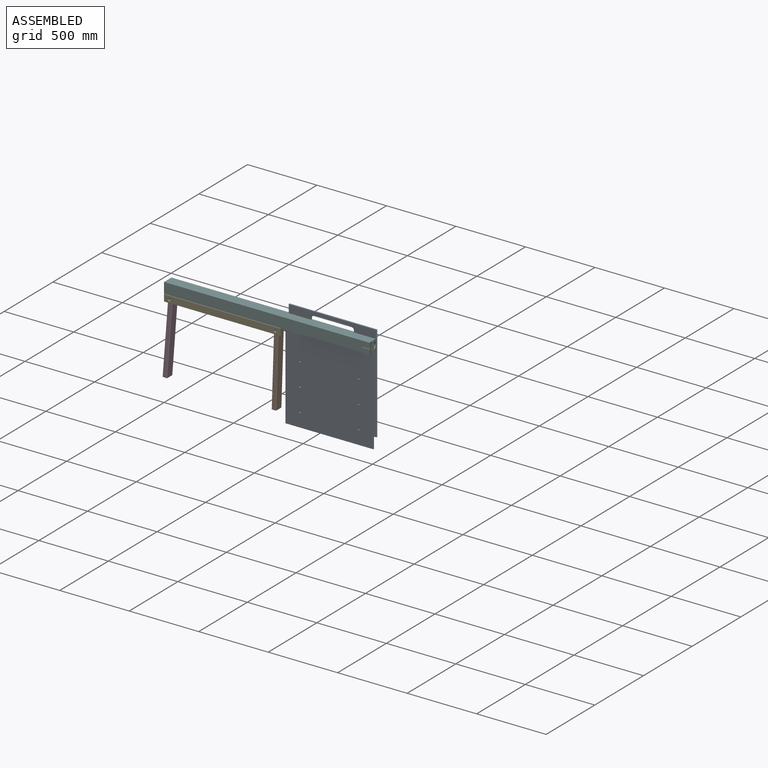
[diagram: assembled view]
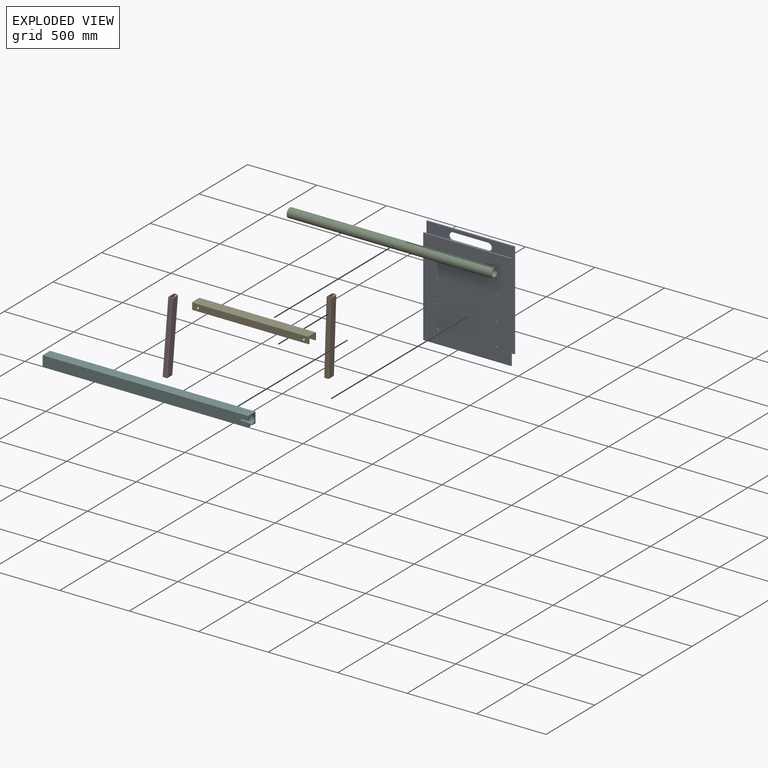
[diagram: exploded view]
GUIDED TOUR — MATED ASSEMBLY WITH SUBASSEMBLIES (Onshape document 70557b2124c0daec0d32242d, AutoMate assembly 70557b2124c0daec0d32242d_989a107bf7c6edacbf782923_fd09c190e4a29a3487687479_default)

This assembly has 13 component occurrences arranged in 6 top-level units: 5 individual components plus 1 subassembly (S0). The tour has two levels: first the top level, where each subassembly is treated as one rigid unit; then each subassembly is toured internally in its own section (nesting deeper than one subassembly level is flattened into its subassembly's section).

Components are labeled P0..P12 across the whole record; subassembly units are labeled S0..S0. A mate is a constraint between two units; its type names the relative motion it leaves free:
  CYLINDRICAL — leaves both rotation about and translation along the listed axis free,
  FASTENED — locks the two components together rigidly (no relative motion),
  REVOLUTE — leaves rotation about the listed axis free (a hinge).
Axis/direction vectors are unit vectors and 'through' points are millimeter coordinates, both in the assembly's world frame.

TOP-LEVEL MATES (between units; each subassembly's internal mates are listed in its own section)
  1. CYLINDRICAL "Cylindrical 1": P6 <-> P12, axis (1.000, 0.000, 0.000) through (1411.62, 133.45, 10.81) mm
  2. REVOLUTE "Revolute 2": P8 <-> P9, axis (0.000, -1.000, 0.000) through (-28.56, 104.24, -57.14) mm
  3. REVOLUTE "Revolute 1": P3 <-> P9, axis (0.000, -1.000, 0.000) through (733.44, 104.24, -57.14) mm
  4. FASTENED "Fastened 1": P12 <-> P9, direction (0.000, 0.000, -1.000) through (-66.66, 133.45, -27.29) mm
  5. FASTENED "Fastened 2": P6 <-> S0, direction (0.000, -1.000, 0.000) through (1411.62, 138.53, 43.43) mm

TOP-LEVEL ASSEMBLY ORDER
  1. P8 — the base component [order verified]
  2. P9 [order verified]
  3. P6 [order verified]
  4. P3 [order verified]
  5. P12 [order verified]
  6. S0 [order verified]
Order-tag legend:
  [order verified] — this step's position reverses a verified removal order: the component was checked to insert without passing through the ones already placed.

Of the 13 component occurrences, 6 carry the full construction recipe — the FeatureScript program that regenerates the part's solid from scratch; the rest are supplied as boundary geometry only. Each toured unit is shown spotlighted twice — assembled, then exploded with a leader line back to its socket (green = recipe-attached component, orange = geometry-only, blue = subassembly unit; the rest desaturated gray).
NOTE — this tour is split across 2 documents so each fits a 32k-token context. This is document 1: the component sections continue in the remaining 1 document, each repeating the header above.
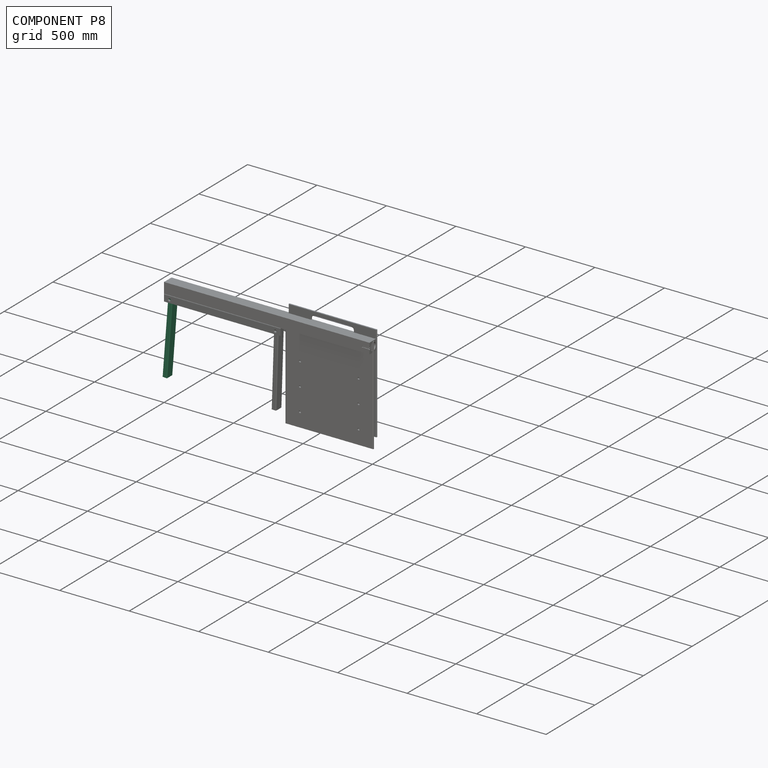
[diagram: component P8 — assembled]
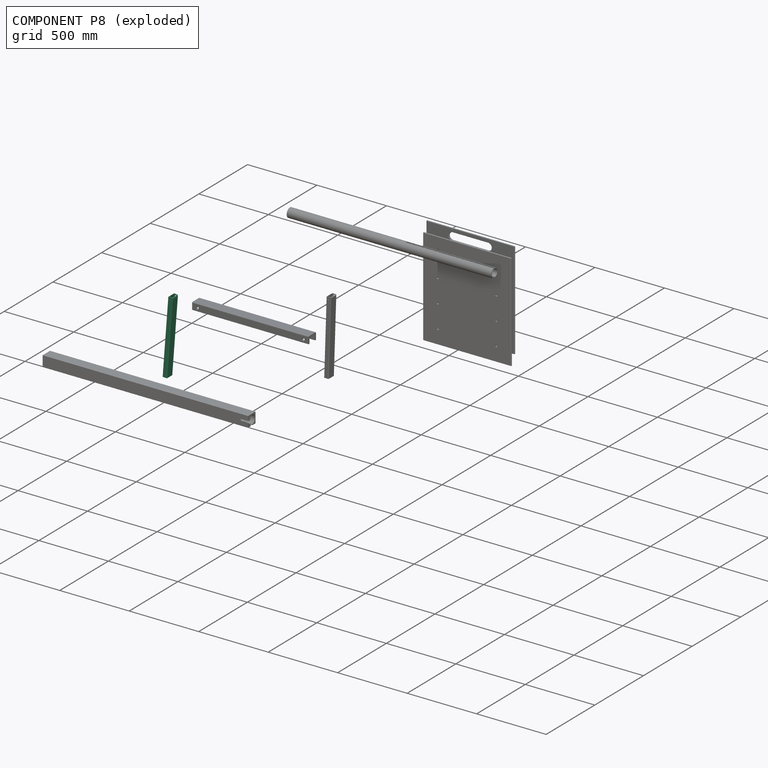
[diagram: component P8 — exploded]
COMPONENT P8 — same part as P3 (CADFS 00144173); its construction recipe is shown at P3.
Held by: REVOLUTE mate "Revolute 2" to P9.
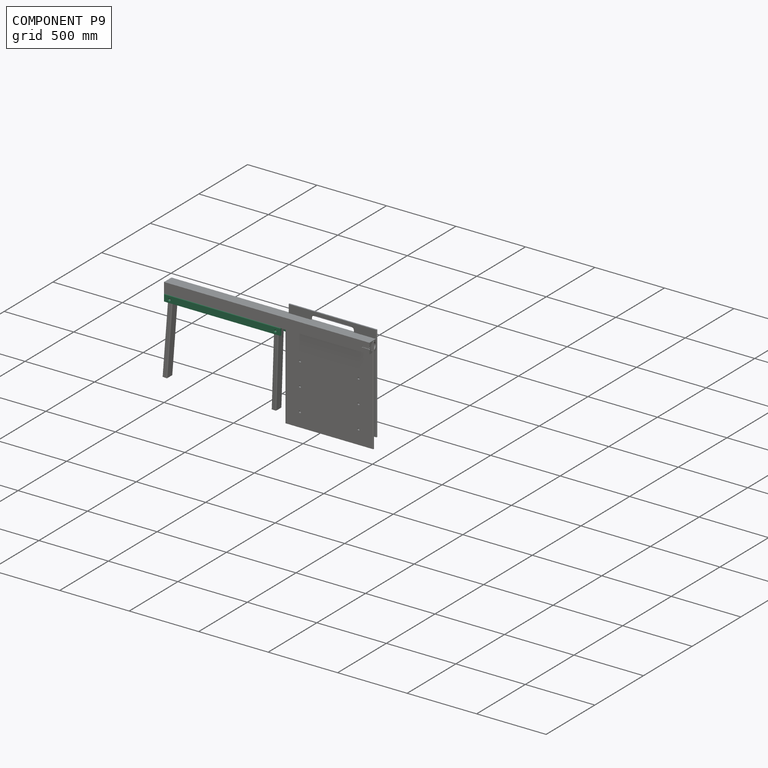
[diagram: component P9 — assembled]
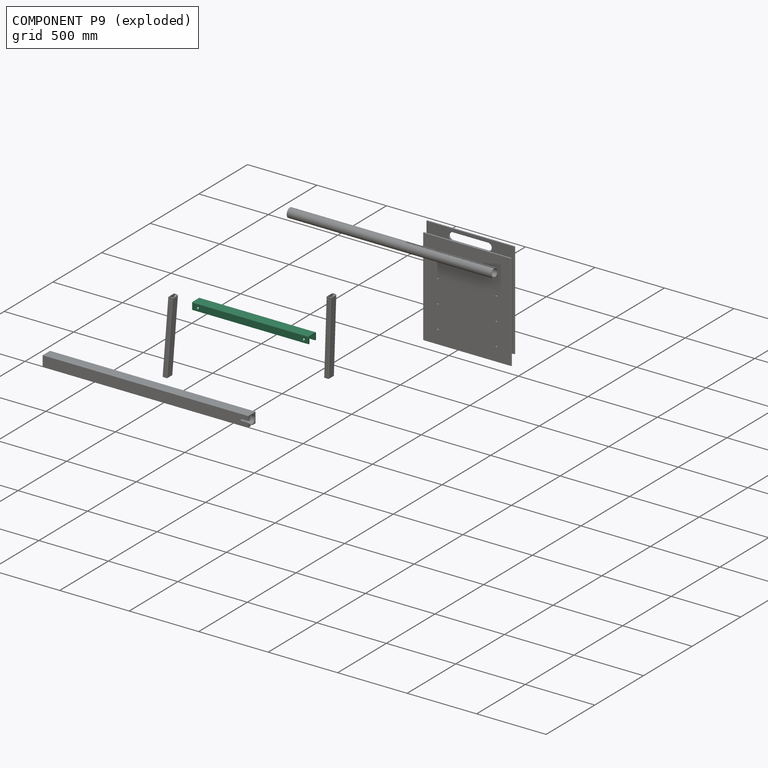
[diagram: component P9 — exploded]
COMPONENT P9 — recipe-attached (CADFS 00144172, mesh-verified: the recipe's output STEP matches this component's geometry to below the mesh-comparison resolution (tessellation chordal tolerance ~1.26 mm)).
Held by: REVOLUTE mate "Revolute 2" to P8; REVOLUTE mate "Revolute 1" to P3; FASTENED mate "Fastened 1" to P12.
Construction recipe (FeatureScript — the CAD program that rebuilds this solid; sketch coordinates are in the units given by the * unit suffixes, e.g. mm):

FeatureScript 1511;
import(path : "onshape/std/geometry.fs", version : "1511.0");
import(path : "onshape/std/common.fs", version : "1511.0");
const mm = millimeter;
const VERTEX = EntityType.VERTEX;
const EDGE = EntityType.EDGE;
const FACE = EntityType.FACE;
const BODY = EntityType.BODY;
function v(x, y){return vector(x, y);}
function OD(order){return orderDisambiguation(order);}
function OSD(set){return originalSetDisambiguation(set);}
function TD(topology){return topologyDisambiguation(topology);}
function TDD(query){return trueDependencyDisambiguation(query);}
function sQuery(a, b, c) {return sketchEntityQuery(a, b, c);}

annotation { "Feature Type Name" : "Feature", "Feature Type Description" : "" }
export const myFeature = defineFeature(function(context is Context, id is Id, definition is map)
    precondition{}
    {
        {
            var Q0;
            Q0=qCreatedBy(makeId("Front.planeOp"),FACE);
            var sketch = newSketch(context, id + "F0", { "sketchPlane" : qUnion([Q0])});
            skLineSegment(sketch, "E0", {"start": v(0, 0) * mm, "end": v(838.2, 0) * mm});
            skLineSegment(sketch, "E1", {"start": v(838.2, 0) * mm, "end": v(838.2, -50.8) * mm});
            skLineSegment(sketch, "E2", {"start": v(0, 0) * mm, "end": v(0, -50.8) * mm});
            skLineSegment(sketch, "E3", {"start": v(0, -50.8) * mm, "end": v(838.2, -50.8) * mm});
            skSolve(sketch);
        }
        {
            var Q0;
            Q0=makeQuery(id+"F0.imprint","IMPRINT",FACE,{"disambiguationData":[TD([[makeQuery(id+"F0.imprint","IMPRINT",EDGE,{"derivedFrom":sQuery(id+"F0.wireOp",EDGE,"E0")}),-1.0]])]});
            extrude(context, id + "F1", {"entities" : qUnion([Q0]), "depth" : 76.2 * mm});
        }
        {
            var Q0;
            Q0=makeQuery(id+"F1.opExtrude","CAP_FACE",FACE,{"disambiguationData":[OSD([sQuery(id+"F0.wireOp",EDGE,"E0"),sQuery(id+"F0.wireOp",EDGE,"E1"),sQuery(id+"F0.wireOp",EDGE,"E2"),sQuery(id+"F0.wireOp",EDGE,"E3")])],"isStart":false});
            var sketch = newSketch(context, id + "F2", { "sketchPlane" : qUnion([Q0])});
            skPoint(sketch, "E4", {"position": v(38.1, -29.85) * mm});
            skPoint(sketch, "E5", {"position": v(800.1, -29.84) * mm});
            skSolve(sketch);
        }
        {
            var Q0;
            Q0=makeQuery(id+"F1.opExtrude","SWEPT_FACE",FACE,{"disambiguationData":[OSD([sQuery(id+"F0.wireOp",EDGE,"E1")])]});
            var Q1;
            Q1=makeQuery(id+"F1.opExtrude","SWEPT_FACE",FACE,{"disambiguationData":[OSD([sQuery(id+"F0.wireOp",EDGE,"E3")])]});
            var Q2;
            Q2=makeQuery(id+"F1.opExtrude","SWEPT_FACE",FACE,{"disambiguationData":[OSD([sQuery(id+"F0.wireOp",EDGE,"E2")])]});
            shell(context, id + "F3", {"entities" : qUnion([Q0, Q1, Q2]), "thickness" : 8.9 * mm});
        }
        {
            var Q0;
            Q0=sQuery(id+"F2.wireOp",VERTEX,"E4");
            var Q1;
            Q1=sQuery(id+"F2.wireOp",VERTEX,"E5");
            var Q2;
            Q2=makeQuery(id+"F1.opExtrude","SWEPT_BODY",BODY,{"disambiguationData":[OSD([sQuery(id+"F0.wireOp",EDGE,"E0"),sQuery(id+"F0.wireOp",EDGE,"E1"),sQuery(id+"F0.wireOp",EDGE,"E2"),sQuery(id+"F0.wireOp",EDGE,"E3")])]});
            hole(context, id + "F4", {"style" : HoleStyle.C_SINK, "endStyle" : HoleEndStyle.THROUGH, "holeDiameter" : 12.7 * mm, "cSinkDiameter" : 20.32 * mm, "cSinkAngle" : 90 * degree, "locations" : qUnion([Q0, Q1]), "scope" : qUnion([Q2]), "isTappedThrough" : true});
        }
        {
            var Q0;
            Q0=makeQuery(id+"F1.opExtrude","CAP_EDGE",EDGE,{"disambiguationData":[OSD([sQuery(id+"F0.wireOp",EDGE,"E0")])],"isStart":false});
            var Q1;
            Q1=makeQuery(id+"F1.opExtrude","CAP_EDGE",EDGE,{"disambiguationData":[OSD([sQuery(id+"F0.wireOp",EDGE,"E0")])],"isStart":true});
            fillet(context, id + "F5", {"entities" : qUnion([Q0, Q1]), "radius" : 5.08 * mm, "tangentPropagation" : true, "allowEdgeOverflow" : false});
        }
    });
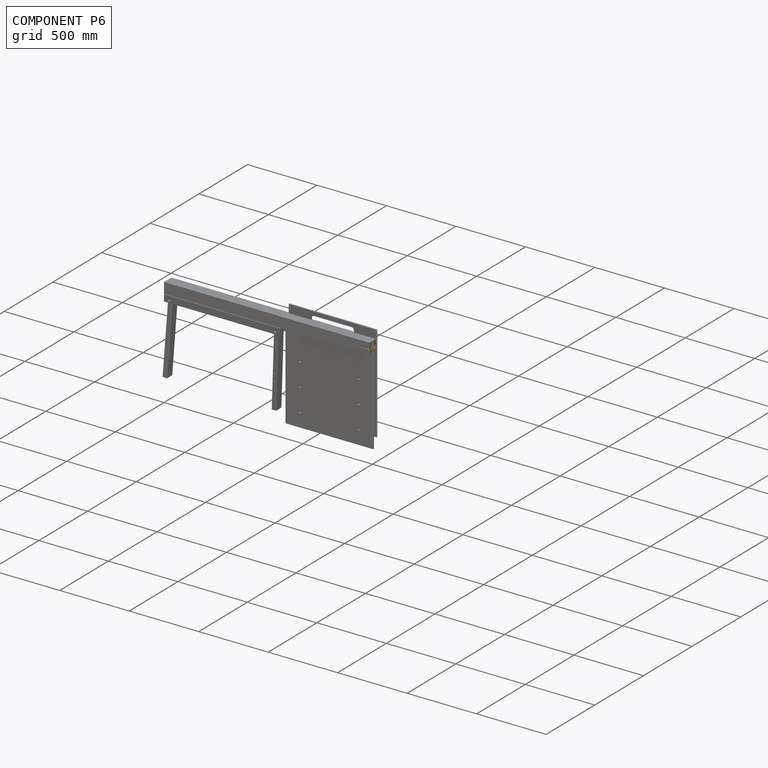
[diagram: component P6 — assembled]
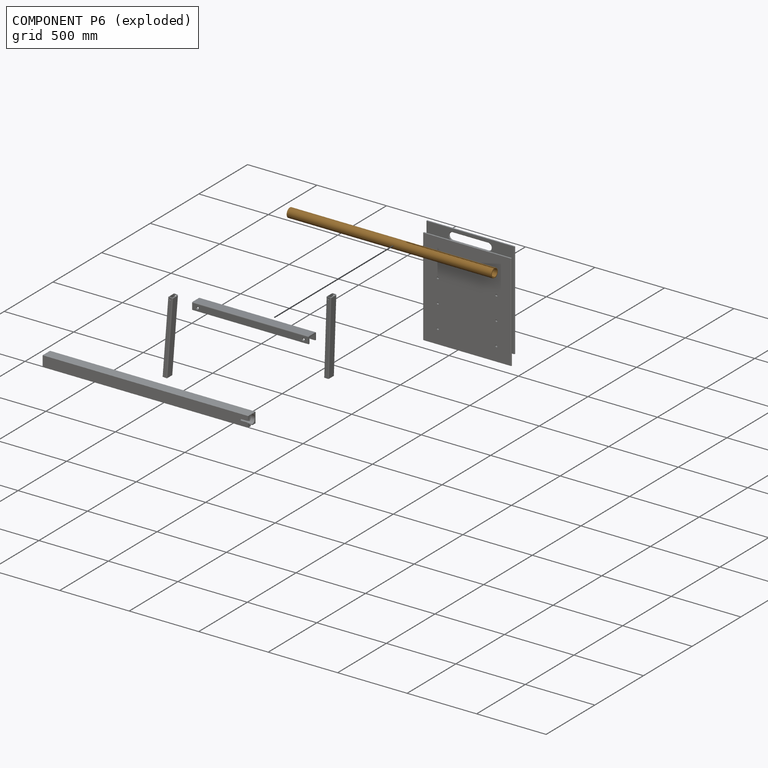
[diagram: component P6 — exploded]
COMPONENT P6 — geometry summary (no construction recipe available for this part):
  bounding box: 1473.2 x 66.0 x 66.0 mm
  B-rep topology: 1 solid, 11 faces, 60 edges
  volume: 1367387 mm^3 (21% of its bounding box)
  symmetry: 2-fold rotationally symmetric about the x axis; revolution-symmetric about the y axis through its bounding-box center; 2-fold rotationally symmetric about the z axis; mirror-symmetric across its x mid-plane, y mid-plane, z mid-plane
Held by: CYLINDRICAL mate "Cylindrical 1" to P12; FASTENED mate "Fastened 2" to P0.
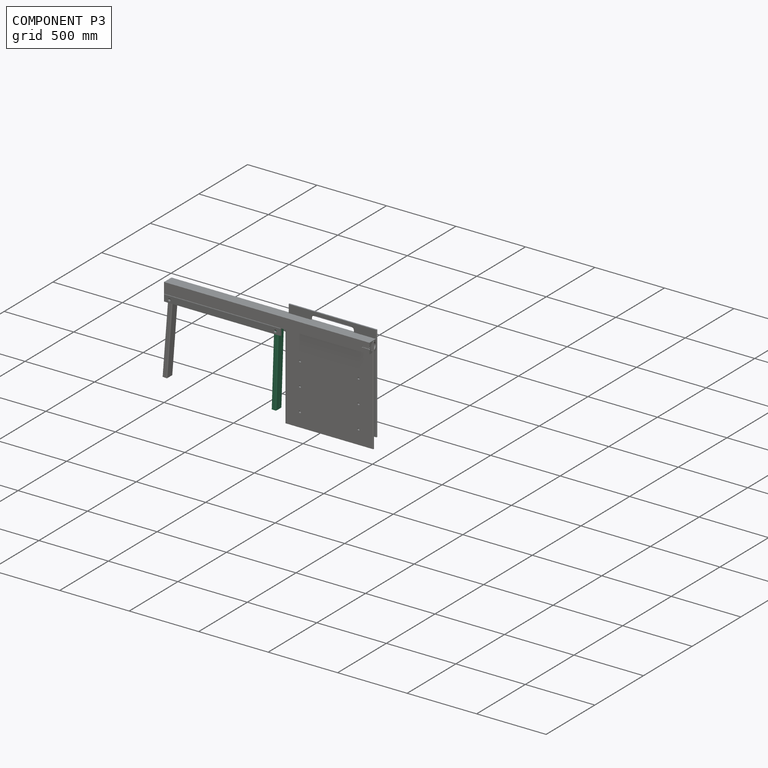
[diagram: component P3 — assembled]
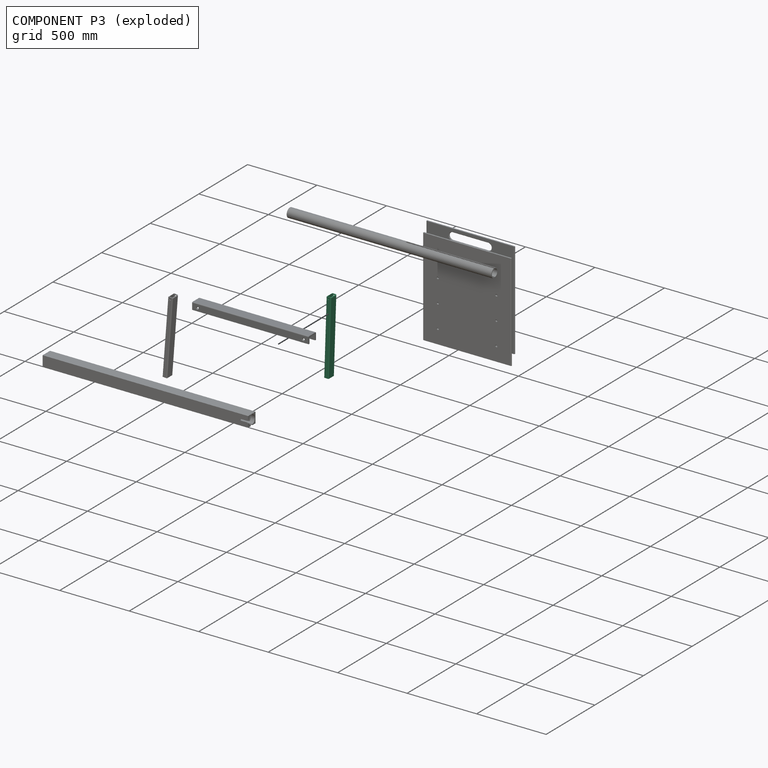
[diagram: component P3 — exploded]
COMPONENT P3 — recipe-attached (CADFS 00144173, mesh-verified: the recipe's output STEP matches this component's geometry to below the mesh-comparison resolution (tessellation chordal tolerance ~0.806 mm)).
Held by: REVOLUTE mate "Revolute 1" to P9.
Construction recipe (FeatureScript — the CAD program that rebuilds this solid; sketch coordinates are in the units given by the * unit suffixes, e.g. mm):

FeatureScript 1511;
import(path : "onshape/std/geometry.fs", version : "1511.0");
import(path : "onshape/std/common.fs", version : "1511.0");
const mm = millimeter;
const VERTEX = EntityType.VERTEX;
const EDGE = EntityType.EDGE;
const FACE = EntityType.FACE;
const BODY = EntityType.BODY;
function v(x, y){return vector(x, y);}
function OD(order){return orderDisambiguation(order);}
function OSD(set){return originalSetDisambiguation(set);}
function TD(topology){return topologyDisambiguation(topology);}
function TDD(query){return trueDependencyDisambiguation(query);}
function sQuery(a, b, c) {return sketchEntityQuery(a, b, c);}

annotation { "Feature Type Name" : "Feature", "Feature Type Description" : "" }
export const myFeature = defineFeature(function(context is Context, id is Id, definition is map)
    precondition{}
    {
        {
            var Q0;
            Q0=qCreatedBy(makeId("Front.planeOp"),FACE);
            var sketch = newSketch(context, id + "F0", { "sketchPlane" : qUnion([Q0])});
            skLineSegment(sketch, "E0.bottom", {"start": v(0, 0) * mm, "end": v(33.02, 0) * mm});
            skLineSegment(sketch, "E0.top", {"start": v(0, -533.4) * mm, "end": v(33.02, -533.4) * mm});
            skLineSegment(sketch, "E0.left", {"start": v(0, 0) * mm, "end": v(0, -533.4) * mm});
            skLineSegment(sketch, "E0.right", {"start": v(33.02, 0) * mm, "end": v(33.02, -533.4) * mm});
            skSolve(sketch);
        }
        {
            var Q0;
            Q0=makeQuery(id+"F0.imprint","IMPRINT",FACE,{"disambiguationData":[TD([[makeQuery(id+"F0.imprint","IMPRINT",EDGE,{"derivedFrom":sQuery(id+"F0.wireOp",EDGE,"E0.bottom")}),-1.0]])]});
            extrude(context, id + "F1", {"entities" : qUnion([Q0]), "depth" : 58.42 * mm});
        }
        {
            var Q0;
            Q0=makeQuery(id+"F1.opExtrude","CAP_FACE",FACE,{"disambiguationData":[OSD([sQuery(id+"F0.wireOp",EDGE,"E0.bottom"),sQuery(id+"F0.wireOp",EDGE,"E0.top"),sQuery(id+"F0.wireOp",EDGE,"E0.left"),sQuery(id+"F0.wireOp",EDGE,"E0.right")])],"isStart":false});
            var sketch = newSketch(context, id + "F2", { "sketchPlane" : qUnion([Q0])});
            skPoint(sketch, "E1", {"position": v(16.51, 0) * mm});
            skLineSegment(sketch, "E2", {"start": v(16.51, 0) * mm, "end": v(16.51, -12.7) * mm, "construction": true});
            skSolve(sketch);
        }
        {
            var Q0;
            Q0=makeQuery(id+"F1.opExtrude","SWEPT_FACE",FACE,{"disambiguationData":[OSD([sQuery(id+"F0.wireOp",EDGE,"E0.bottom")])]});
            var Q1;
            Q1=makeQuery(id+"F1.opExtrude","SWEPT_FACE",FACE,{"disambiguationData":[OSD([sQuery(id+"F0.wireOp",EDGE,"E0.top")])]});
            shell(context, id + "F3", {"entities" : qUnion([Q0, Q1]), "thickness" : 5.08 * mm});
        }
        {
            var Q0;
            Q0=sQuery(id+"F2.wireOp",VERTEX,"E2.end");
            var Q1;
            Q1=makeQuery(id+"F1.opExtrude","SWEPT_BODY",BODY,{"disambiguationData":[OSD([sQuery(id+"F0.wireOp",EDGE,"E0.bottom"),sQuery(id+"F0.wireOp",EDGE,"E0.top"),sQuery(id+"F0.wireOp",EDGE,"E0.left"),sQuery(id+"F0.wireOp",EDGE,"E0.right")])]});
            hole(context, id + "F4", {"style" : HoleStyle.SIMPLE, "endStyle" : HoleEndStyle.THROUGH, "holeDiameter" : 12.7 * mm, "locations" : qUnion([Q0]), "scope" : qUnion([Q1]), "isTappedThrough" : true});
        }
        {
            var Q0;
            Q0=makeQuery(id+"F1.opExtrude","CAP_EDGE",EDGE,{"disambiguationData":[OSD([sQuery(id+"F0.wireOp",EDGE,"E0.left")])],"isStart":false});
            var Q1;
            Q1=makeQuery(id+"F1.opExtrude","CAP_EDGE",EDGE,{"disambiguationData":[OSD([sQuery(id+"F0.wireOp",EDGE,"E0.right")])],"isStart":false});
            var Q2;
            Q2=makeQuery(id+"F1.opExtrude","CAP_EDGE",EDGE,{"disambiguationData":[OSD([sQuery(id+"F0.wireOp",EDGE,"E0.right")])],"isStart":true});
            var Q3;
            Q3=makeQuery(id+"F1.opExtrude","CAP_EDGE",EDGE,{"disambiguationData":[OSD([sQuery(id+"F0.wireOp",EDGE,"E0.left")])],"isStart":true});
            var Q4;
            Q4=makeQuery(id+"F1.opExtrude","SWEPT_EDGE",EDGE,{"disambiguationData":[OSD([sQuery(id+"F0.wireOp",EDGE,"E0.bottom"),sQuery(id+"F0.wireOp",EDGE,"E0.right")])]});
            var Q5;
            Q5=makeQuery(id+"F1.opExtrude","SWEPT_EDGE",EDGE,{"disambiguationData":[OSD([sQuery(id+"F0.wireOp",EDGE,"E0.bottom"),sQuery(id+"F0.wireOp",EDGE,"E0.left")])]});
            fillet(context, id + "F5", {"entities" : qUnion([Q0, Q1, Q2, Q3, Q4, Q5]), "radius" : 5.08 * mm, "tangentPropagation" : true, "allowEdgeOverflow" : false});
        }
    });
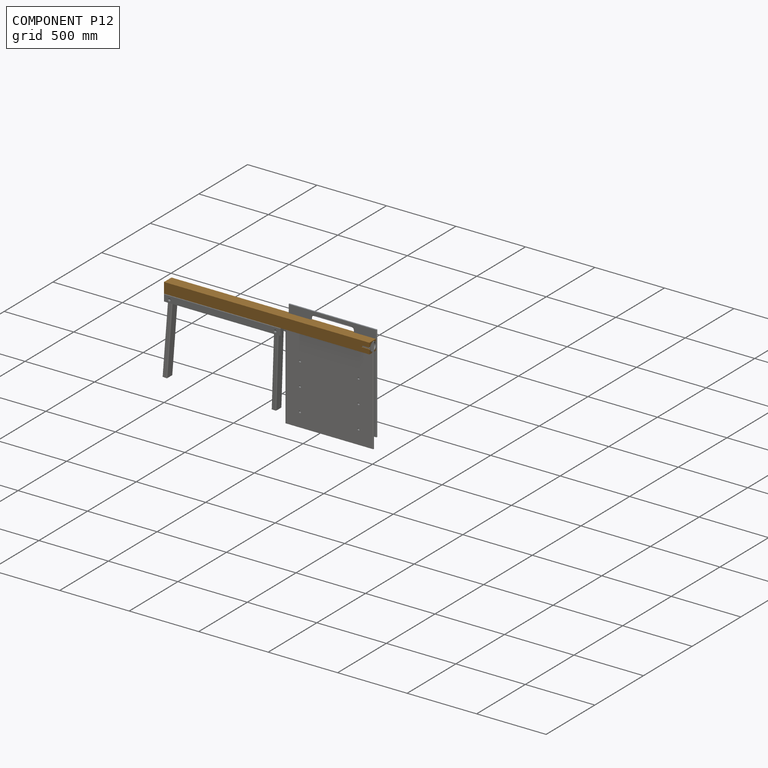
[diagram: component P12 — assembled]
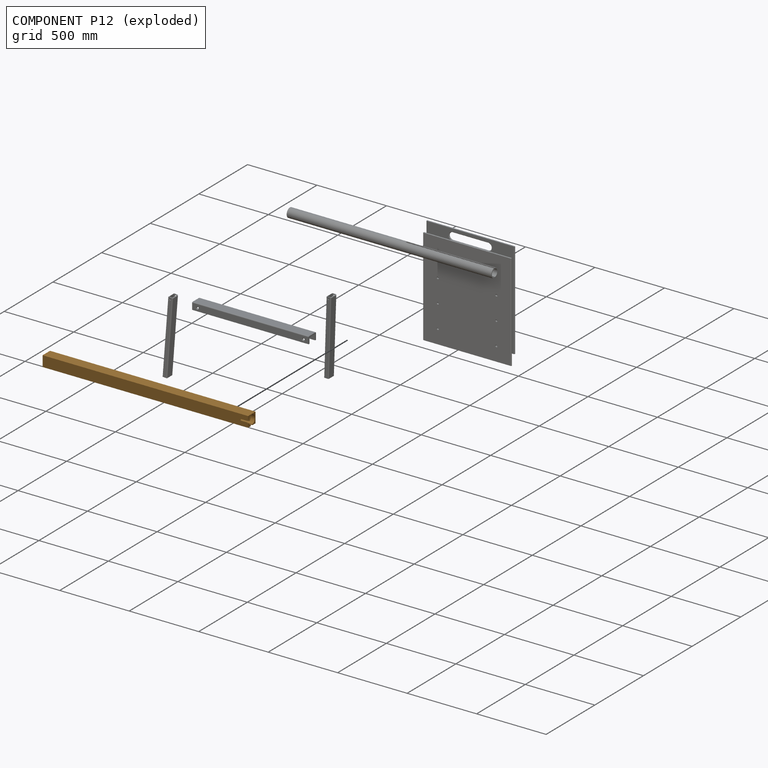
[diagram: component P12 — exploded]
COMPONENT P12 — geometry summary (no construction recipe available for this part):
  bounding box: 1478.3 x 76.2 x 76.2 mm
  B-rep topology: 1 solid, 27 faces, 152 edges
  volume: 2128575 mm^3 (25% of its bounding box)
  symmetry: 4-fold rotationally symmetric about the y axis; mirror-symmetric across its x mid-plane, z mid-plane
Held by: CYLINDRICAL mate "Cylindrical 1" to P6; FASTENED mate "Fastened 1" to P9.
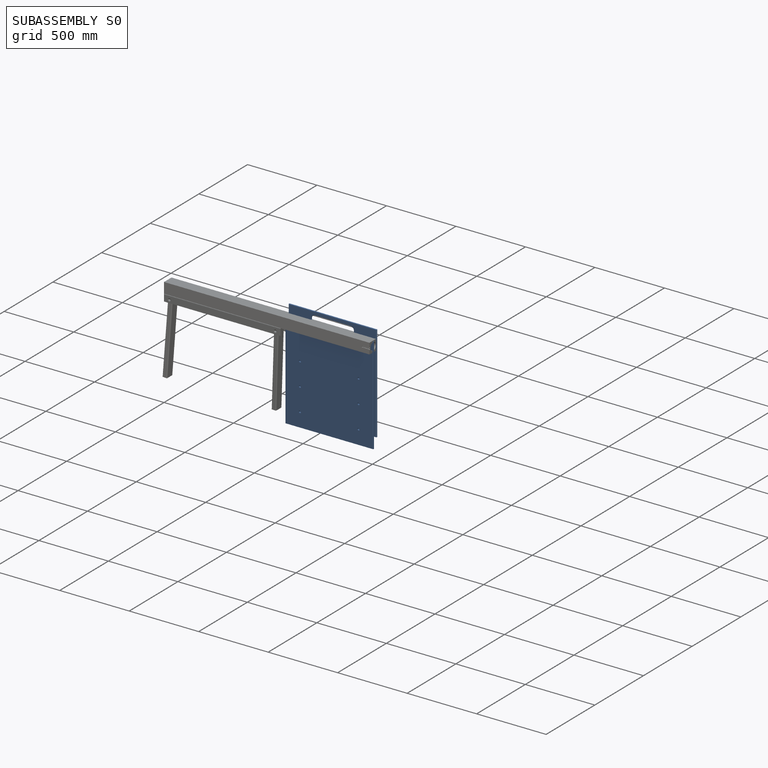
[diagram: subassembly S0 — assembled]
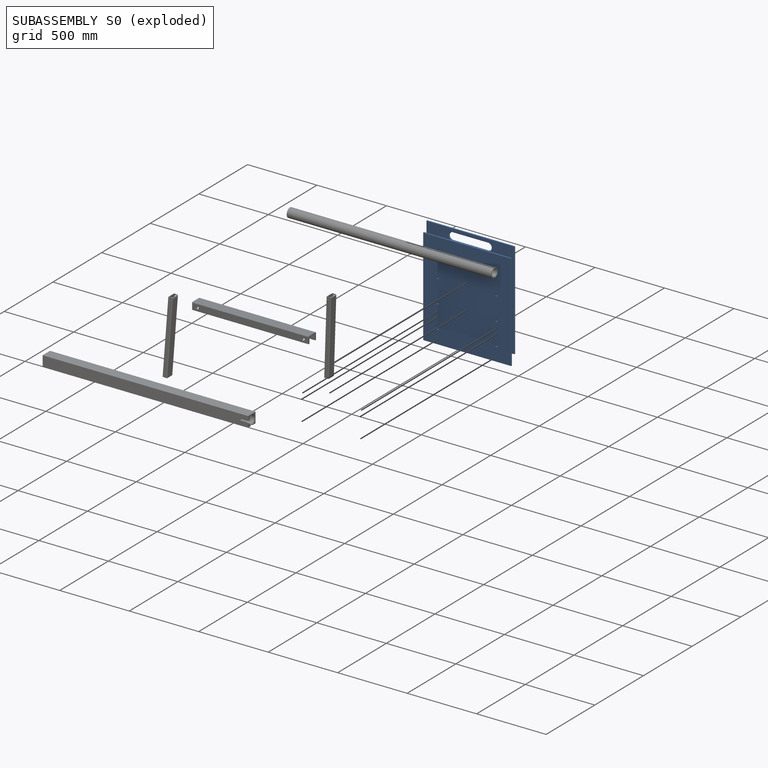
[diagram: subassembly S0 — exploded]
SUBASSEMBLY S0 — 8 components (P0, P1, P2, P4, P5, P7, P10, P11), of which 3 recipe-attached; toured below.
Held by: FASTENED mate "Fastened 2" to P6.
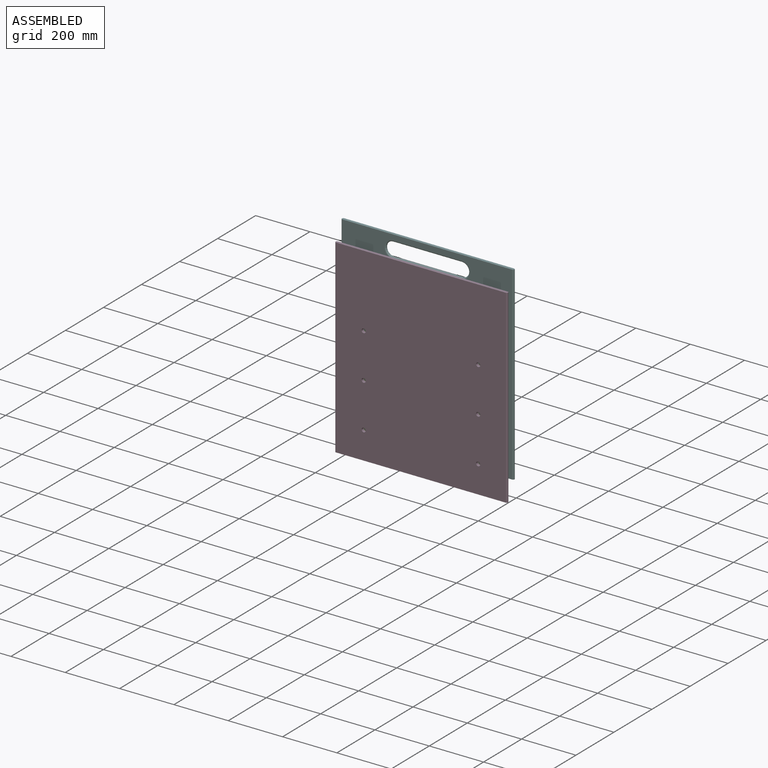
[diagram: subassembly S0 — assembled view]
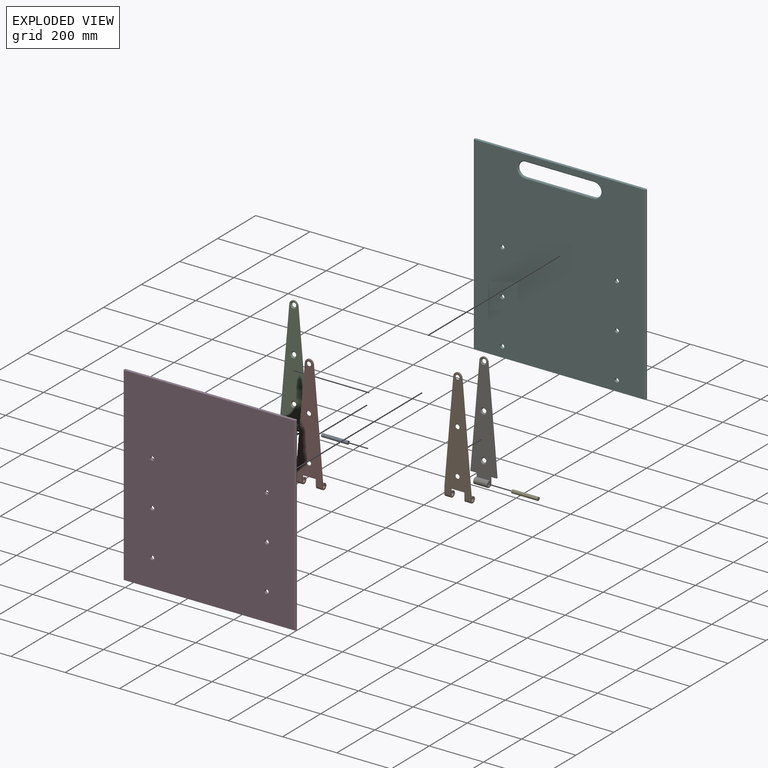
[diagram: subassembly S0 — exploded view]
SUBASSEMBLY S0 TOUR — 8 components, shown here in isolation at its own camera.

INTERNAL MATES
  1. FASTENED "Fastened 2": P7 <-> P2, direction (0.000, -1.000, 0.000) through (888.38, 161.39, -553.47) mm
  2. FASTENED "Fastened 3": P1 <-> P4, direction (0.000, -1.000, 0.000) through (1310.02, 138.53, -223.27) mm
  3. FASTENED "Fastened 1": P11 <-> P4, direction (0.000, -1.000, 0.000) through (888.38, 138.53, -223.27) mm
  4. FASTENED "Fastened 1": P5 <-> P1, direction (-1.000, 0.000, 0.000) through (1261.76, 149.96, -622.88) mm
  5. REVOLUTE "Revolute 1": P2 <-> P11, axis (-1.000, 0.000, 0.000) through (862.98, 149.96, -622.88) mm
  6. REVOLUTE "Revolute 1": P10 <-> P1, axis (-1.000, 0.000, 0.000) through (1284.62, 149.96, -622.88) mm
  7. FASTENED "Fastened 1": P0 <-> P11, direction (-1.000, 0.000, 0.000) through (840.12, 149.96, -622.88) mm
  8. FASTENED "Fastened 4": P10 <-> P7, direction (0.000, 1.000, 0.000) through (1310.02, 161.39, -553.47) mm
  9. FASTENED "Fastened 4": P10 <-> P7, direction (0.000, 1.000, 0.000) through (1310.02, 161.39, -553.47) mm
  10. REVOLUTE "Revolute 1": P10 <-> P1, axis (-1.000, 0.000, 0.000) through (1284.62, 149.96, -622.88) mm
  11. FASTENED "Fastened 1": P0 <-> P11, direction (-1.000, 0.000, 0.000) through (840.12, 149.96, -622.88) mm
  12. FASTENED "Fastened 1": P11 <-> P4, direction (0.000, -1.000, 0.000) through (888.38, 138.53, -223.27) mm
  13. REVOLUTE "Revolute 1": P2 <-> P11, axis (-1.000, 0.000, 0.000) through (862.98, 149.96, -622.88) mm
  14. FASTENED "Fastened 2": P7 <-> P2, direction (0.000, -1.000, 0.000) through (888.38, 161.39, -553.47) mm
  15. FASTENED "Fastened 1": P5 <-> P1, direction (-1.000, 0.000, 0.000) through (1261.76, 149.96, -622.88) mm
  16. FASTENED "Fastened 3": P1 <-> P4, direction (0.000, -1.000, 0.000) through (1310.02, 138.53, -223.27) mm

ASSEMBLY ORDER (within the subassembly)
  1. P10 — the base component [order verified]
  2. P5 [order verified]
  3. P1 [order verified]
  4. P0 [order verified]
  5. P2 [order verified]
  6. P11 [order verified]
  7. P7 [order verified]
  8. P4 [order verified]
(P0, P5 verified with a relaxed clearance tolerance: the source model stores slight part interference there.)
Order-tag legend:
  [order verified] — this step's position reverses a verified removal order: the component was checked to insert without passing through the ones already placed.
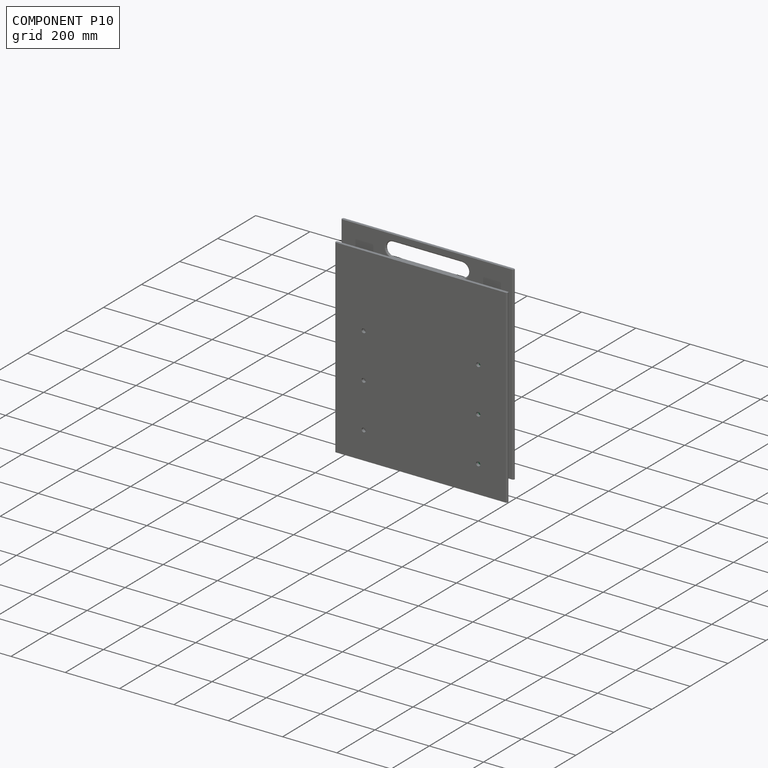
[diagram: component P10 — assembled]
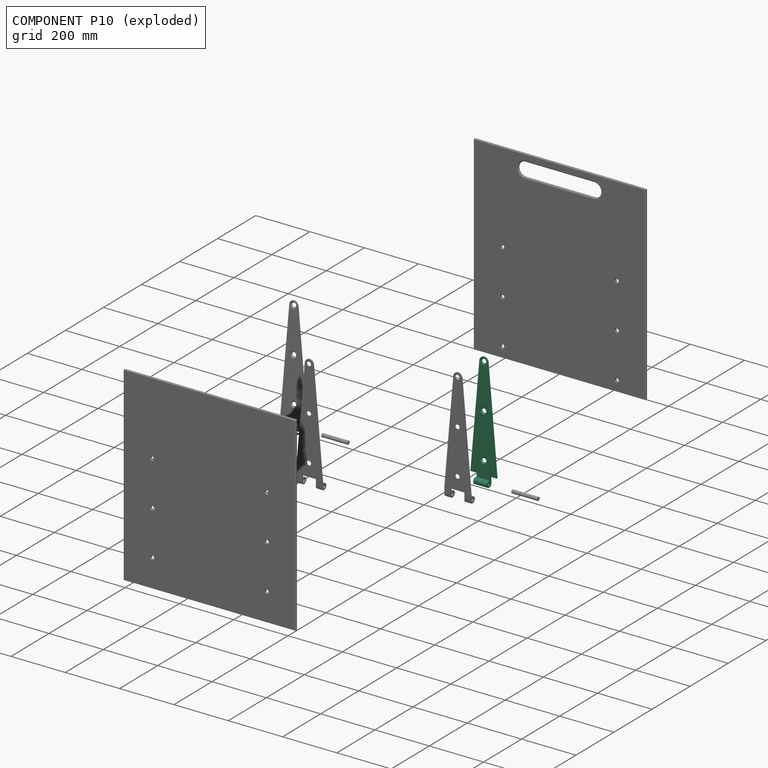
[diagram: component P10 — exploded]
COMPONENT P10 — same part as P2 (CADFS 00144174); its construction recipe is shown at P2.
Held by: REVOLUTE mate "Revolute 1" to P1; FASTENED mate "Fastened 4" to P7; FASTENED mate "Fastened 4" to P7; REVOLUTE mate "Revolute 1" to P1.
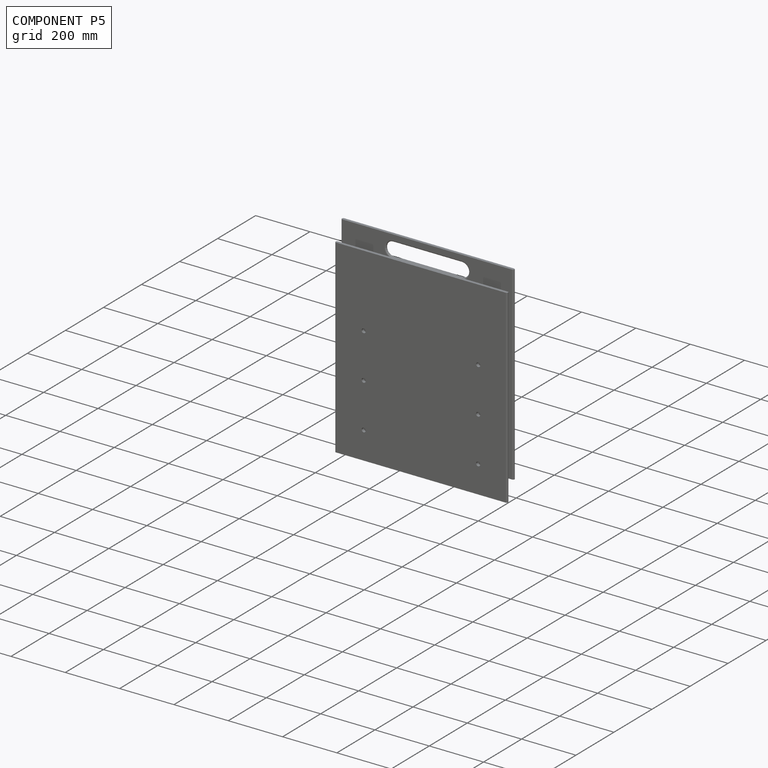
[diagram: component P5 — assembled]
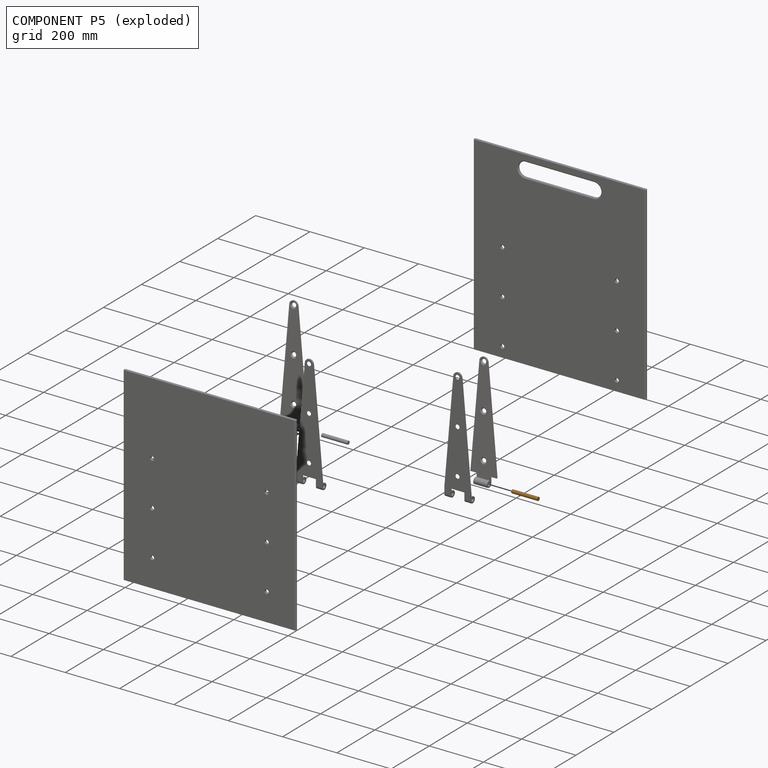
[diagram: component P5 — exploded]
COMPONENT P5 — geometry summary (no construction recipe available for this part):
  bounding box: 96.5 x 12.7 x 12.7 mm
  B-rep topology: 1 solid, 3 faces, 6 edges
  volume: 12227 mm^3 (79% of its bounding box)
  symmetry: revolution-symmetric about the x axis through its bounding-box center; 2-fold rotationally symmetric about the y axis; 2-fold rotationally symmetric about the z axis; mirror-symmetric across its x mid-plane, y mid-plane, z mid-plane
Held by: FASTENED mate "Fastened 1" to P1; FASTENED mate "Fastened 1" to P1.
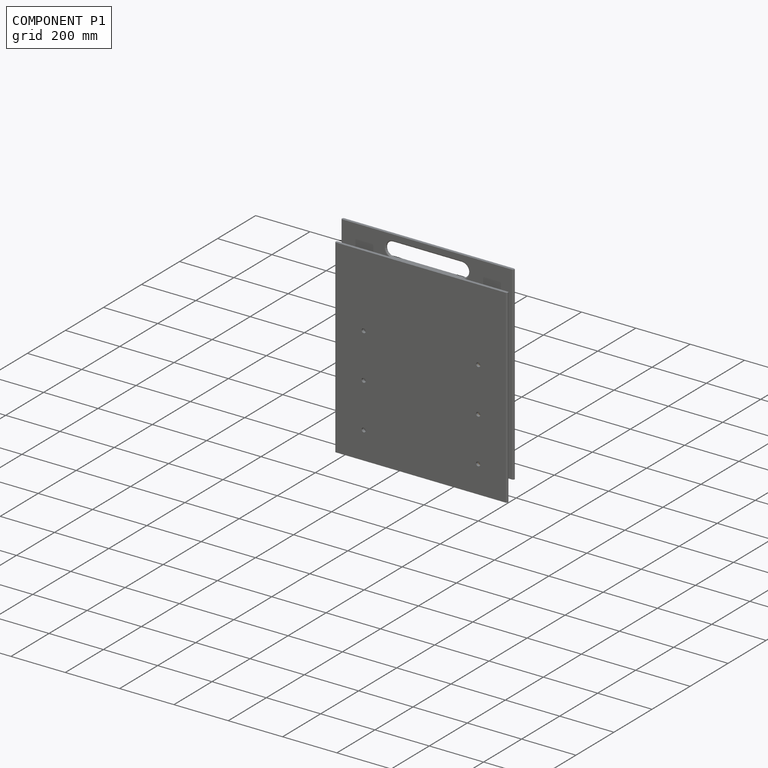
[diagram: component P1 — assembled]
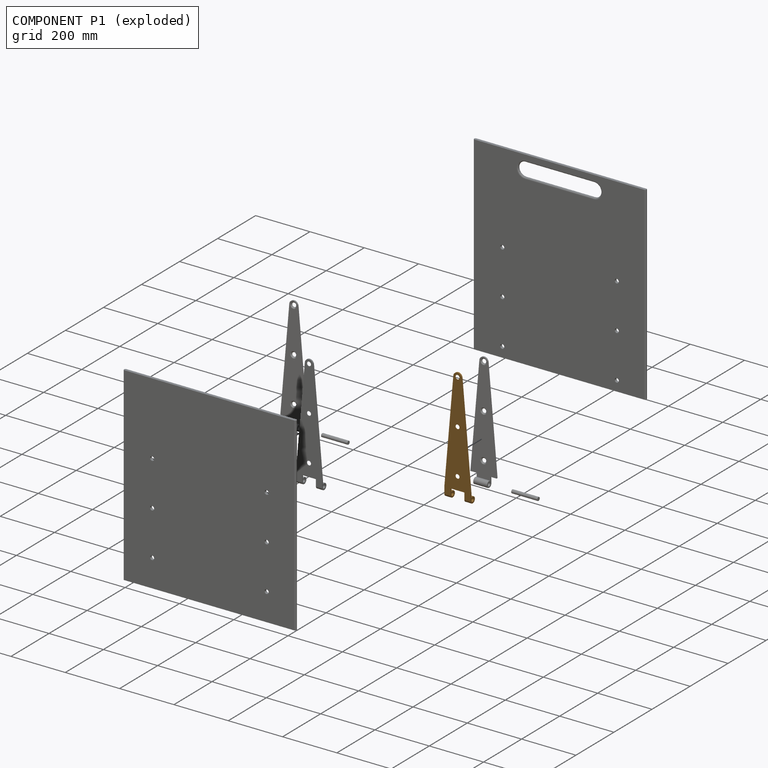
[diagram: component P1 — exploded]
COMPONENT P1 — geometry summary (no construction recipe available for this part):
  bounding box: 426.3 x 96.5 x 22.9 mm
  B-rep topology: 1 solid, 20 faces, 102 edges
  volume: 136233 mm^3 (14% of its bounding box)
  symmetry: mirror-symmetric across its x mid-plane
Held by: FASTENED mate "Fastened 3" to P4; FASTENED mate "Fastened 1" to P5; REVOLUTE mate "Revolute 1" to P10; REVOLUTE mate "Revolute 1" to P10; FASTENED mate "Fastened 1" to P5; FASTENED mate "Fastened 3" to P4.
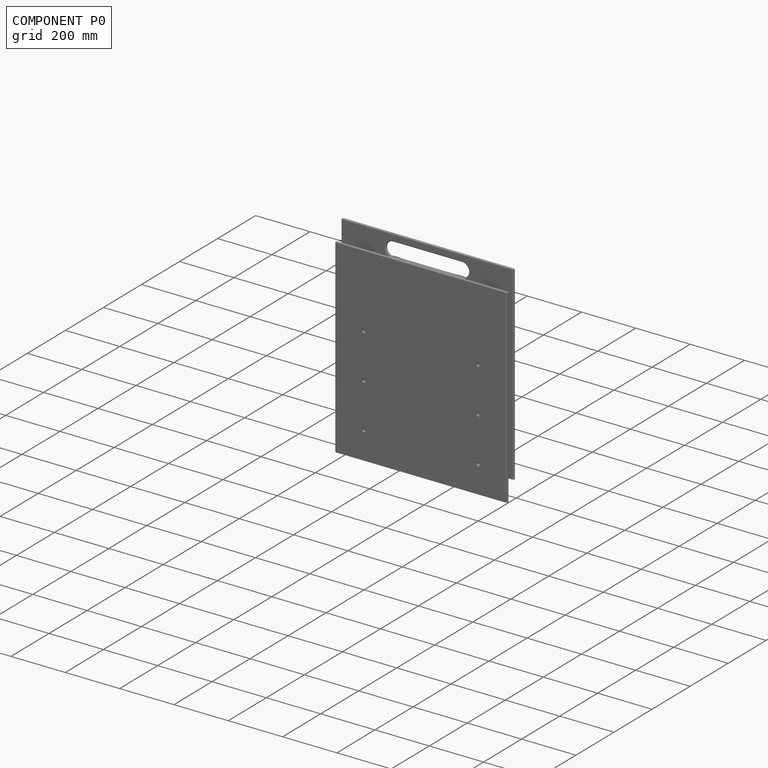
[diagram: component P0 — assembled]
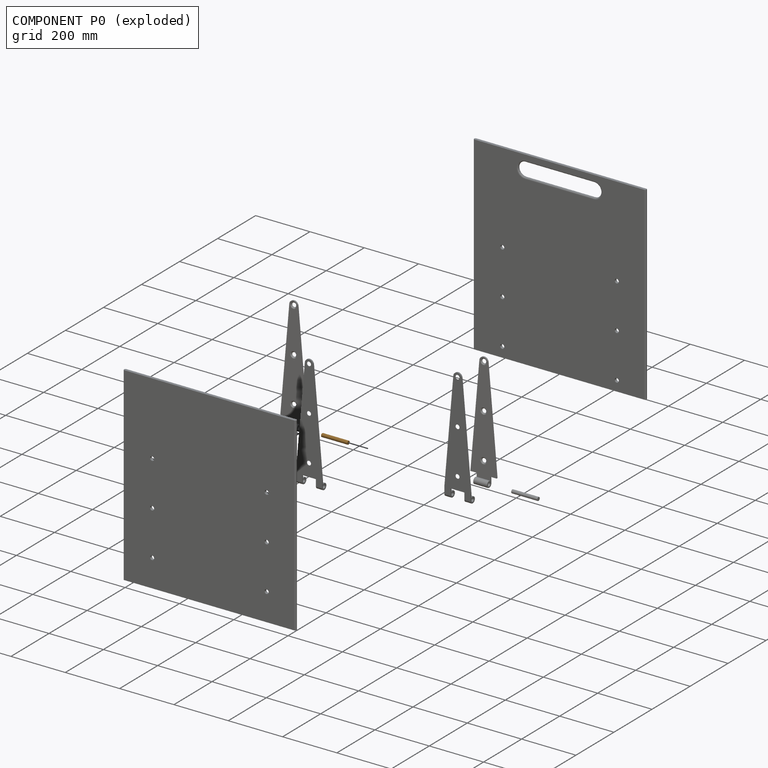
[diagram: component P0 — exploded]
COMPONENT P0 — geometry summary (no construction recipe available for this part):
  bounding box: 96.5 x 12.7 x 12.7 mm
  B-rep topology: 1 solid, 3 faces, 6 edges
  volume: 12227 mm^3 (79% of its bounding box)
  symmetry: revolution-symmetric about the x axis through its bounding-box center; 2-fold rotationally symmetric about the y axis; 2-fold rotationally symmetric about the z axis; mirror-symmetric across its x mid-plane, y mid-plane, z mid-plane
Held by: FASTENED mate "Fastened 1" to P11; FASTENED mate "Fastened 1" to P11.
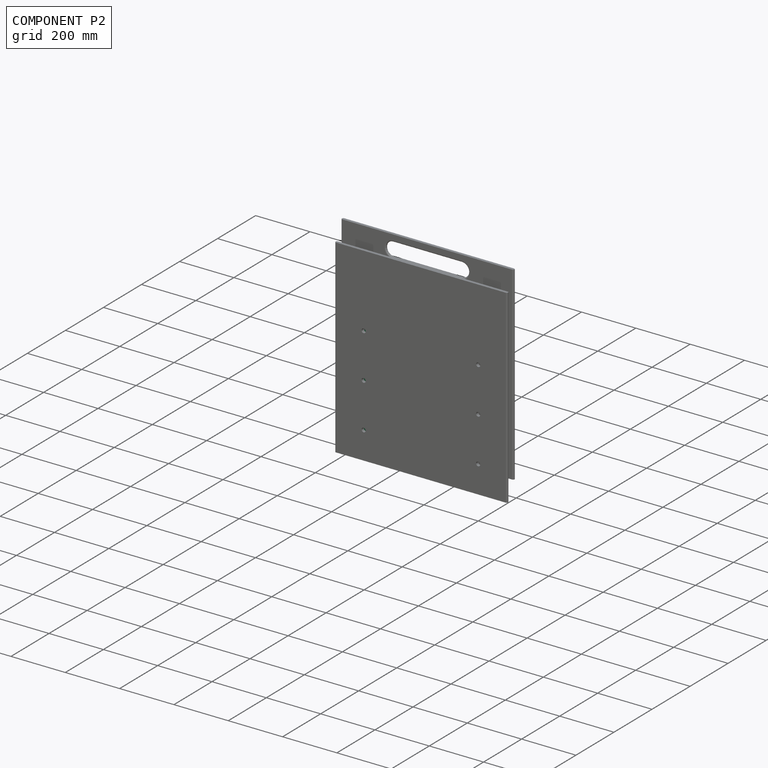
[diagram: component P2 — assembled]
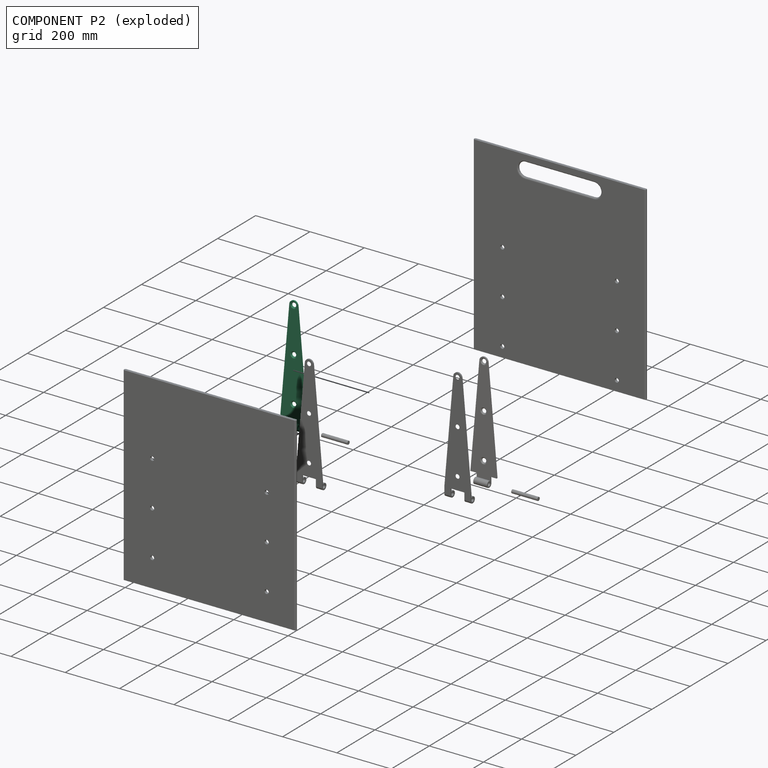
[diagram: component P2 — exploded]
COMPONENT P2 — recipe-attached (CADFS 00144174, mesh-verified: the recipe's output STEP matches this component's geometry to below the mesh-comparison resolution (tessellation chordal tolerance ~0.656 mm)).
Held by: FASTENED mate "Fastened 2" to P7; REVOLUTE mate "Revolute 1" to P11; REVOLUTE mate "Revolute 1" to P11; FASTENED mate "Fastened 2" to P7.
Construction recipe (FeatureScript — the CAD program that rebuilds this solid; sketch coordinates are in the units given by the * unit suffixes, e.g. mm):

FeatureScript 1511;
import(path : "onshape/std/geometry.fs", version : "1511.0");
import(path : "onshape/std/common.fs", version : "1511.0");
const mm = millimeter;
const VERTEX = EntityType.VERTEX;
const EDGE = EntityType.EDGE;
const FACE = EntityType.FACE;
const BODY = EntityType.BODY;
function v(x, y){return vector(x, y);}
function OD(order){return orderDisambiguation(order);}
function OSD(set){return originalSetDisambiguation(set);}
function TD(topology){return topologyDisambiguation(topology);}
function TDD(query){return trueDependencyDisambiguation(query);}
function sQuery(a, b, c) {return sketchEntityQuery(a, b, c);}

annotation { "Feature Type Name" : "Feature", "Feature Type Description" : "" }
export const myFeature = defineFeature(function(context is Context, id is Id, definition is map)
    precondition{}
    {
        {
            var Q0;
            Q0=qCreatedBy(makeId("Front.planeOp"),FACE);
            var sketch = newSketch(context, id + "F0", { "sketchPlane" : qUnion([Q0])});
            skLineSegment(sketch, "E0", {"start": v(0, 0) * mm, "end": v(96.52, 0) * mm});
            skLineSegment(sketch, "E1", {"start": v(0, 0) * mm, "end": v(48.26, 551.61) * mm});
            skLineSegment(sketch, "E2", {"start": v(96.52, 0) * mm, "end": v(48.26, 551.61) * mm});
            skSolve(sketch);
        }
        {
            var Q0;
            Q0=makeQuery(id+"F0.imprint","IMPRINT",FACE,{"disambiguationData":[TD([[makeQuery(id+"F0.imprint","IMPRINT",EDGE,{"derivedFrom":sQuery(id+"F0.wireOp",EDGE,"E0")}),1.0]])]});
            extrude(context, id + "F1", {"entities" : qUnion([Q0]), "depth" : 5.08 * mm});
        }
        {
            var Q0;
            Q0=makeQuery(id+"F1.opExtrude","SWEPT_FACE",FACE,{"disambiguationData":[OSD([sQuery(id+"F0.wireOp",EDGE,"E0")])]});
            var sketch = newSketch(context, id + "F2", { "sketchPlane" : qUnion([Q0])});
            skLineSegment(sketch, "E3", {"start": v(0, 5.08) * mm, "end": v(22.86, 5.08) * mm, "construction": true});
            skLineSegment(sketch, "E4", {"start": v(96.52, 5.08) * mm, "end": v(73.66, 5.08) * mm, "construction": true});
            skLineSegment(sketch, "E5.bottom", {"start": v(22.86, 5.08) * mm, "end": v(73.66, 5.08) * mm});
            skLineSegment(sketch, "E5.top", {"start": v(22.86, 0) * mm, "end": v(73.66, 0) * mm});
            skLineSegment(sketch, "E5.left", {"start": v(22.86, 5.08) * mm, "end": v(22.86, 0) * mm});
            skLineSegment(sketch, "E5.right", {"start": v(73.66, 5.08) * mm, "end": v(73.66, 0) * mm});
            skSolve(sketch);
        }
        {
            var Q0;
            Q0=makeQuery(id+"F2.imprint","IMPRINT",FACE,{"disambiguationData":[TD([[makeQuery(id+"F2.imprint","IMPRINT",EDGE,{"derivedFrom":sQuery(id+"F2.wireOp",EDGE,"E5.bottom")}),-1.0]])]});
            extrude(context, id + "F3", {"entities" : qUnion([Q0]), "operationType" : NewBodyOperationType.ADD, "depth" : 22.86 * mm});
        }
        {
            var Q0;
            Q0=makeQuery(id+"F3.opExtrude","CAP_FACE",FACE,{"disambiguationData":[OSD([sQuery(id+"F2.wireOp",EDGE,"E5.bottom"),sQuery(id+"F2.wireOp",EDGE,"E5.top"),sQuery(id+"F2.wireOp",EDGE,"E5.left"),sQuery(id+"F2.wireOp",EDGE,"E5.right")])],"isStart":false});
            var sketch = newSketch(context, id + "F4", { "sketchPlane" : qUnion([Q0])});
            skLineSegment(sketch, "E6", {"start": v(22.86, 5.08) * mm, "end": v(22.86, 11.43) * mm});
            skLineSegment(sketch, "E7", {"start": v(22.86, 11.43) * mm, "end": v(48.26, 11.43) * mm});
            skSolve(sketch);
        }
        {
            var Q0;
            Q0=makeQuery(id+"F4.imprint","IMPRINT",FACE,{"disambiguationData":[TD([[makeQuery(id+"F4.imprint","IMPRINT",EDGE,{"derivedFrom":makeQuery(id+"F3.opExtrude","CAP_EDGE",EDGE,{"disambiguationData":[OSD([sQuery(id+"F2.wireOp",EDGE,"E5.bottom")])],"isStart":false})}),-1.0]])]});
            var Q1;
            Q1=sQuery(id+"F4.wireOp",EDGE,"E7");
            revolve(context, id + "F5", {"operationType" : NewBodyOperationType.ADD, "entities" : qUnion([Q0]), "axis" : qUnion([Q1]), "revolveType" : RevolveType.FULL});
        }
        {
            var Q0;
            Q0=makeQuery(id+"F1.opExtrude","SWEPT_EDGE",EDGE,{"disambiguationData":[OSD([sQuery(id+"F0.wireOp",EDGE,"E1"),sQuery(id+"F0.wireOp",EDGE,"E2")])]});
            fillet(context, id + "F6", {"entities" : qUnion([Q0]), "radius" : 15.24 * mm, "tangentPropagation" : true, "allowEdgeOverflow" : false});
        }
        {
            var Q0;
            Q0=makeQuery(id+"F3.boolean.opBoolean","MERGE",FACE,{"derivedFrom":[makeQuery(id+"F1.opExtrude","CAP_FACE",FACE,{"disambiguationData":[OSD([sQuery(id+"F0.wireOp",EDGE,"E0"),sQuery(id+"F0.wireOp",EDGE,"E1"),sQuery(id+"F0.wireOp",EDGE,"E2")])],"isStart":false}),makeQuery(id+"F3.opExtrude","SWEPT_FACE",FACE,{"disambiguationData":[OSD([sQuery(id+"F2.wireOp",EDGE,"E5.bottom")])]})]});
            var sketch = newSketch(context, id + "F7", { "sketchPlane" : qUnion([Q0])});
            skPoint(sketch, "E8", {"position": v(48.26, 376.75) * mm});
            skPoint(sketch, "E9", {"position": v(48.26, 211.65) * mm});
            skPoint(sketch, "E10", {"position": v(48.26, 46.55) * mm});
            skSolve(sketch);
        }
        {
            var Q0;
            Q0=sQuery(id+"F7.wireOp",VERTEX,"E10");
            var Q1;
            Q1=sQuery(id+"F7.wireOp",VERTEX,"E9");
            var Q2;
            Q2=sQuery(id+"F7.wireOp",VERTEX,"E8");
            var Q3;
            Q3=makeQuery(id+"F1.opExtrude","SWEPT_BODY",BODY,{"disambiguationData":[OSD([sQuery(id+"F0.wireOp",EDGE,"E0"),sQuery(id+"F0.wireOp",EDGE,"E1"),sQuery(id+"F0.wireOp",EDGE,"E2")])]});
            hole(context, id + "F8", {"style" : HoleStyle.C_SINK, "endStyle" : HoleEndStyle.THROUGH, "holeDiameter" : 15.24 * mm, "cSinkDiameter" : 22.86 * mm, "cSinkAngle" : 90 * degree, "locations" : qUnion([Q0, Q1, Q2]), "scope" : qUnion([Q3]), "isTappedThrough" : true});
        }
    });
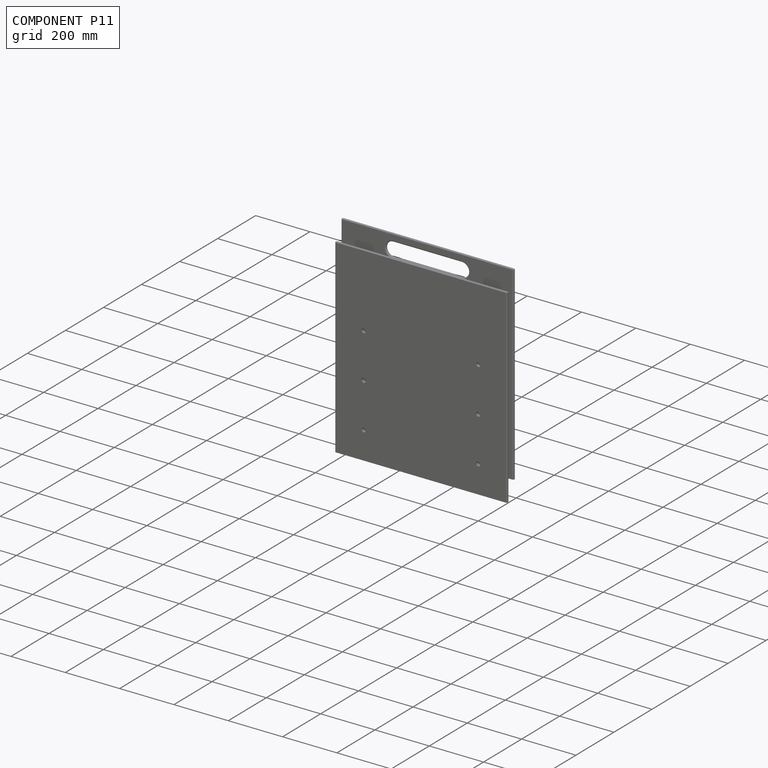
[diagram: component P11 — assembled]
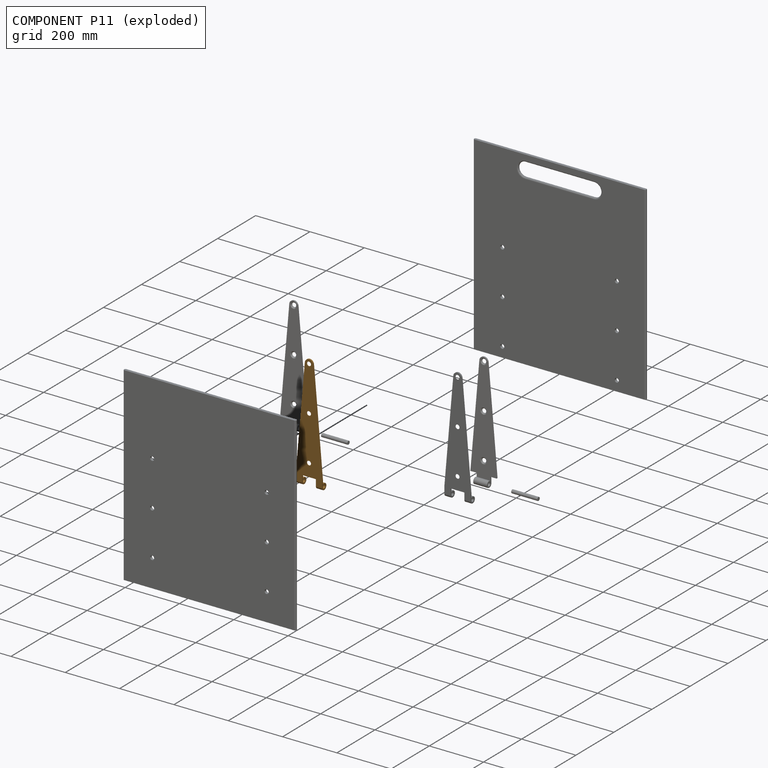
[diagram: component P11 — exploded]
COMPONENT P11 — geometry summary (no construction recipe available for this part):
  bounding box: 426.3 x 96.5 x 22.9 mm
  B-rep topology: 1 solid, 20 faces, 102 edges
  volume: 136233 mm^3 (14% of its bounding box)
  symmetry: mirror-symmetric across its x mid-plane
Held by: FASTENED mate "Fastened 1" to P4; REVOLUTE mate "Revolute 1" to P2; FASTENED mate "Fastened 1" to P0; FASTENED mate "Fastened 1" to P0; FASTENED mate "Fastened 1" to P4; REVOLUTE mate "Revolute 1" to P2.
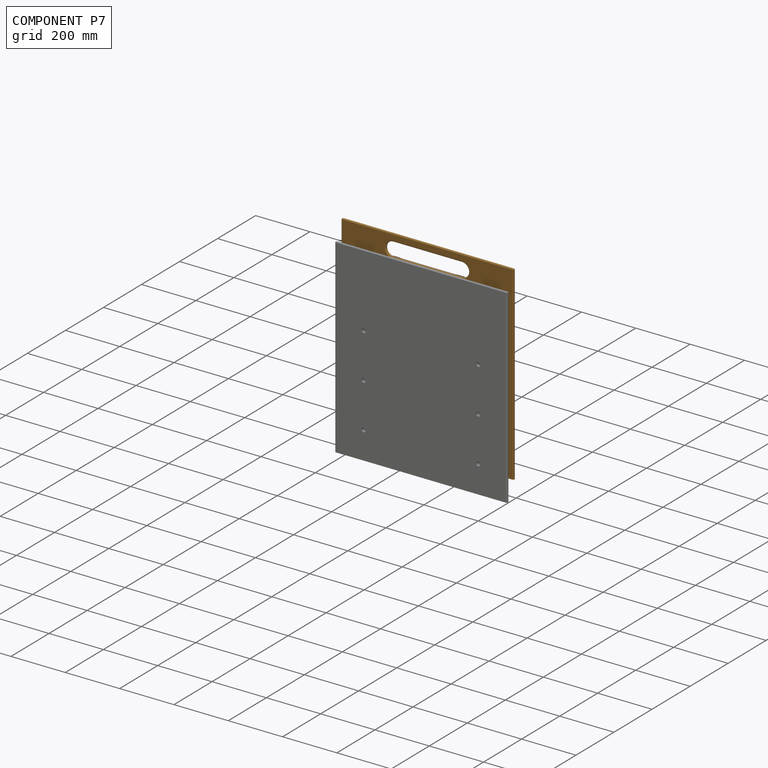
[diagram: component P7 — assembled]
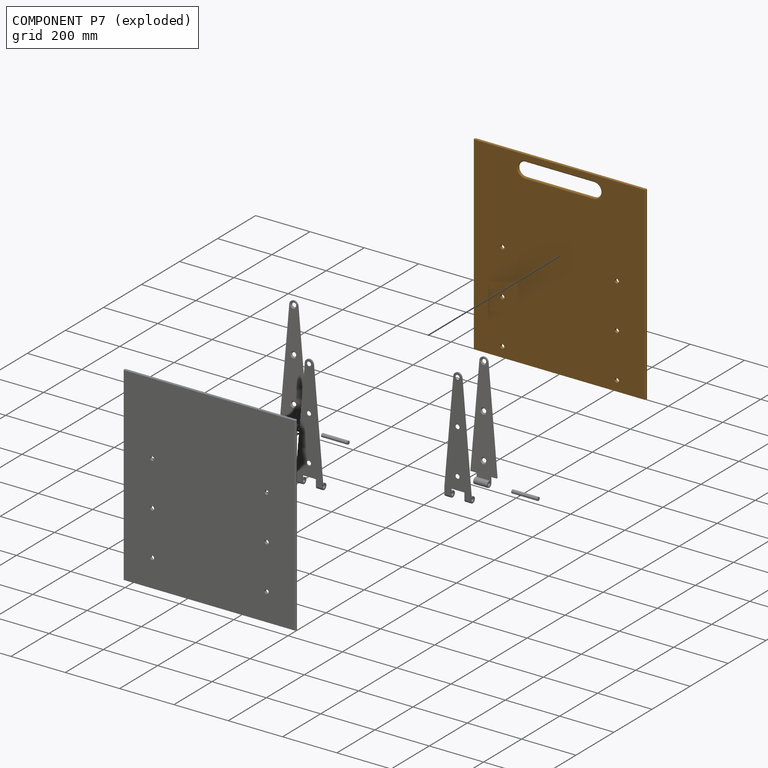
[diagram: component P7 — exploded]
COMPONENT P7 — geometry summary (no construction recipe available for this part):
  bounding box: 698.5 x 635.0 x 10.2 mm
  B-rep topology: 1 solid, 16 faces, 84 edges
  volume: 4320687 mm^3 (96% of its bounding box)
  symmetry: 2-fold rotationally symmetric about the x axis; mirror-symmetric across its y mid-plane, z mid-plane
Held by: FASTENED mate "Fastened 2" to P2; FASTENED mate "Fastened 4" to P10; FASTENED mate "Fastened 4" to P10; FASTENED mate "Fastened 2" to P2.
